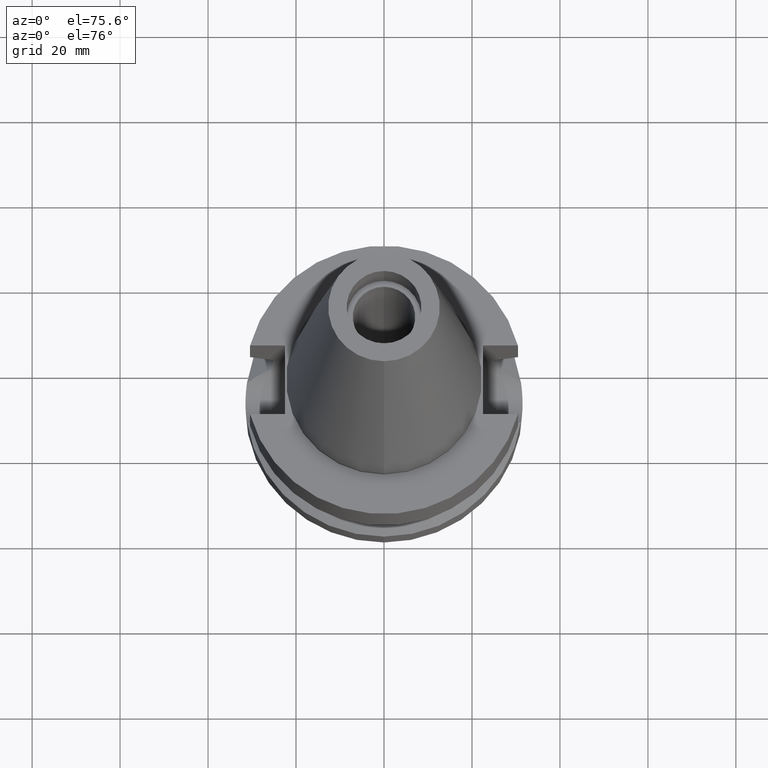
[diagram: clean part render]
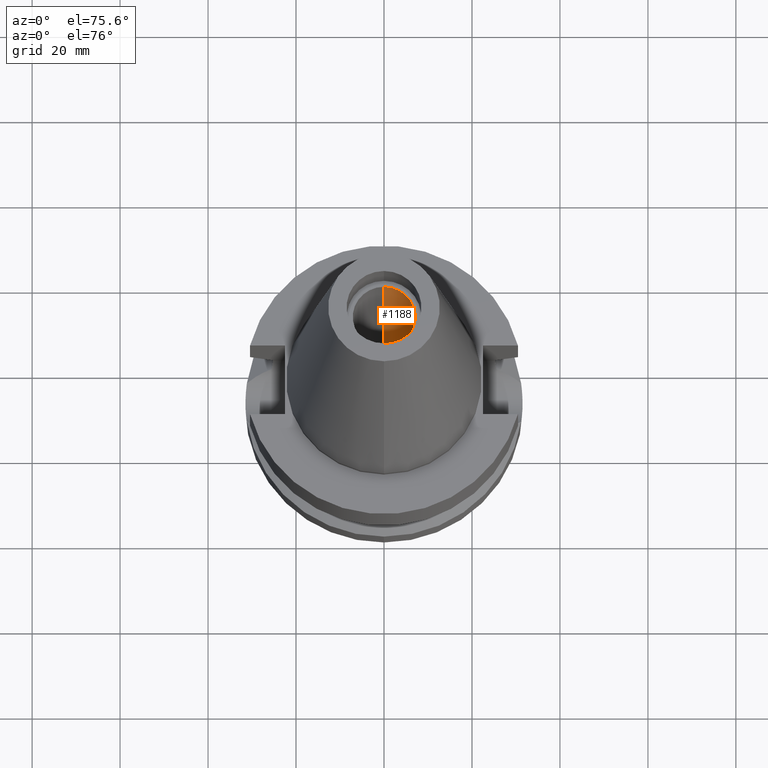
[diagram: same view with one face highlighted and labeled with its STEP entity id]
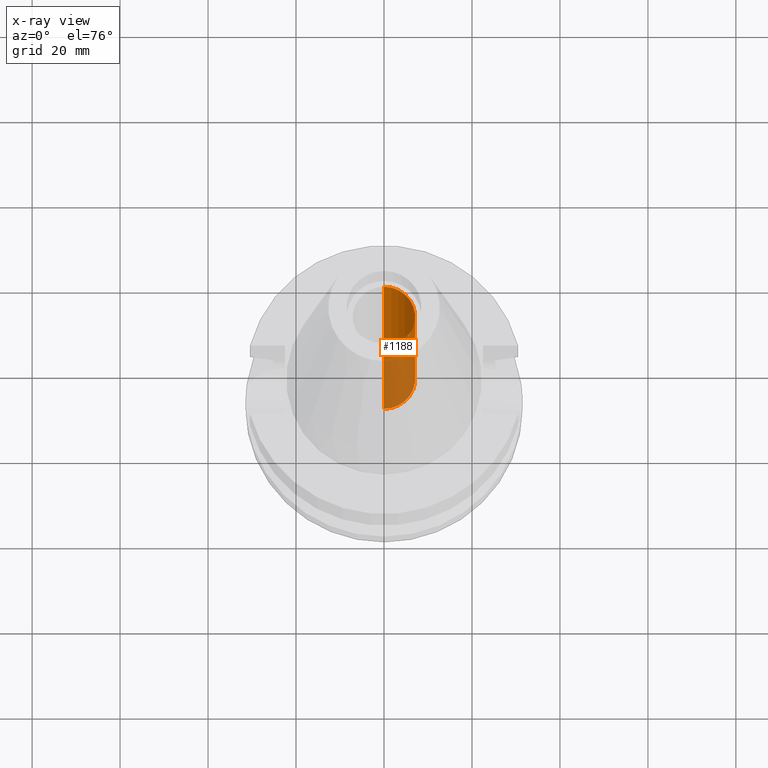
[diagram: x-ray of the same camera — body ghosted, the highlighted face saturated]
A machine part, auxiliary view. The second image highlights one B-rep face of the part: STEP entity #1188.
The next image is the same camera in x-ray: the body ghosted, the highlighted face saturated — about 48% of this face is hidden behind the body in this view.
In plain terms, the highlighted cylindrical surface (edge-blend (fillet) strip) has radius 7.1 mm, axis along (0, 0, -1).
Its self-contained STEP definition (entity closure, byte-faithful):
#34 = EDGE_CURVE ( 'NONE', #1443, #502, #1173, .T. ) ;
#126 = EDGE_CURVE ( 'NONE', #2543, #1443, #2191, .T. ) ;
#221 = CARTESIAN_POINT ( 'NONE',  ( 0.0000000000000000000, 7.100000000000000533, 1.421085471519999938E-13 ) ) ;
#283 = CARTESIAN_POINT ( 'NONE',  ( 0.0000000000000000000, 2.109086717491999768E-14, 72.22000000000001307 ) ) ;
#311 = AXIS2_PLACEMENT_3D ( 'NONE', #2101, #1003, #2372 ) ;
#502 = VERTEX_POINT ( 'NONE', #1307 ) ;
#665 = CARTESIAN_POINT ( 'NONE',  ( 0.0000000000000000000, -7.100000000000000533, 56.39999999999999858 ) ) ;
#677 = EDGE_CURVE ( 'NONE', #2543, #1761, #1426, .T. ) ;
#720 = AXIS2_PLACEMENT_3D ( 'NONE', #283, #2370, #1440 ) ;
#730 = FACE_OUTER_BOUND ( 'NONE', #1904, .T. ) ;
#817 = DIRECTION ( 'NONE',  ( 0.0000000000000000000, 0.0000000000000000000, 1.000000000000000000 ) ) ;
#890 = ORIENTED_EDGE ( 'NONE', *, *, #1279, .F. ) ;
#1003 = DIRECTION ( 'NONE',  ( 0.0000000000000000000, 0.0000000000000000000, 1.000000000000000000 ) ) ;
#1035 = DIRECTION ( 'NONE',  ( 0.0000000000000000000, 0.0000000000000000000, 1.000000000000000000 ) ) ;
#1039 = CARTESIAN_POINT ( 'NONE',  ( 0.0000000000000000000, -7.100000000000000533, 1.421085471519999938E-13 ) ) ;
#1119 = ORIENTED_EDGE ( 'NONE', *, *, #126, .T. ) ;
#1126 = AXIS2_PLACEMENT_3D ( 'NONE', #1229, #2165, #2361 ) ;
#1173 = CIRCLE ( 'NONE', #1126, 7.100000000000000533 ) ;
#1188 = ADVANCED_FACE ( 'NONE', ( #730 ), #2341, .F. ) ;
#1229 = CARTESIAN_POINT ( 'NONE',  ( 0.0000000000000000000, 2.109086717491999768E-14, 56.39999999999999858 ) ) ;
#1279 = EDGE_CURVE ( 'NONE', #1761, #502, #2156, .T. ) ;
#1307 = CARTESIAN_POINT ( 'NONE',  ( 0.0000000000000000000, 7.100000000000000533, 56.39999999999999858 ) ) ;
#1326 = VECTOR ( 'NONE', #817, 1000.000000000000000 ) ;
#1331 = CARTESIAN_POINT ( 'NONE',  ( 0.0000000000000000000, -7.100000000000000533, 1.421085471519999938E-13 ) ) ;
#1365 = ORIENTED_EDGE ( 'NONE', *, *, #34, .T. ) ;
#1371 = VECTOR ( 'NONE', #1035, 1000.000000000000000 ) ;
#1426 = CIRCLE ( 'NONE', #311, 7.100000000000000533 ) ;
#1440 = DIRECTION ( 'NONE',  ( 0.0000000000000000000, -1.000000000000000000, 0.0000000000000000000 ) ) ;
#1443 = VERTEX_POINT ( 'NONE', #665 ) ;
#1717 = CARTESIAN_POINT ( 'NONE',  ( 0.0000000000000000000, 7.100000000000000533, 1.421085471519999938E-13 ) ) ;
#1761 = VERTEX_POINT ( 'NONE', #221 ) ;
#1784 = ORIENTED_EDGE ( 'NONE', *, *, #677, .F. ) ;
#1904 = EDGE_LOOP ( 'NONE', ( #1784, #1119, #1365, #890 ) ) ;
#2101 = CARTESIAN_POINT ( 'NONE',  ( 0.0000000000000000000, 2.109086717491999768E-14, 1.705302565823999875E-13 ) ) ;
#2156 = LINE ( 'NONE', #1717, #1326 ) ;
#2165 = DIRECTION ( 'NONE',  ( 0.0000000000000000000, 0.0000000000000000000, 1.000000000000000000 ) ) ;
#2191 = LINE ( 'NONE', #1331, #1371 ) ;
#2341 = CYLINDRICAL_SURFACE ( 'NONE', #720, 7.100000000000000533 ) ;
#2361 = DIRECTION ( 'NONE',  ( 0.0000000000000000000, -1.000000000000000000, 0.0000000000000000000 ) ) ;
#2370 = DIRECTION ( 'NONE',  ( 0.0000000000000000000, 0.0000000000000000000, -1.000000000000000000 ) ) ;
#2372 = DIRECTION ( 'NONE',  ( 0.0000000000000000000, -1.000000000000000000, 0.0000000000000000000 ) ) ;
#2543 = VERTEX_POINT ( 'NONE', #1039 ) ;